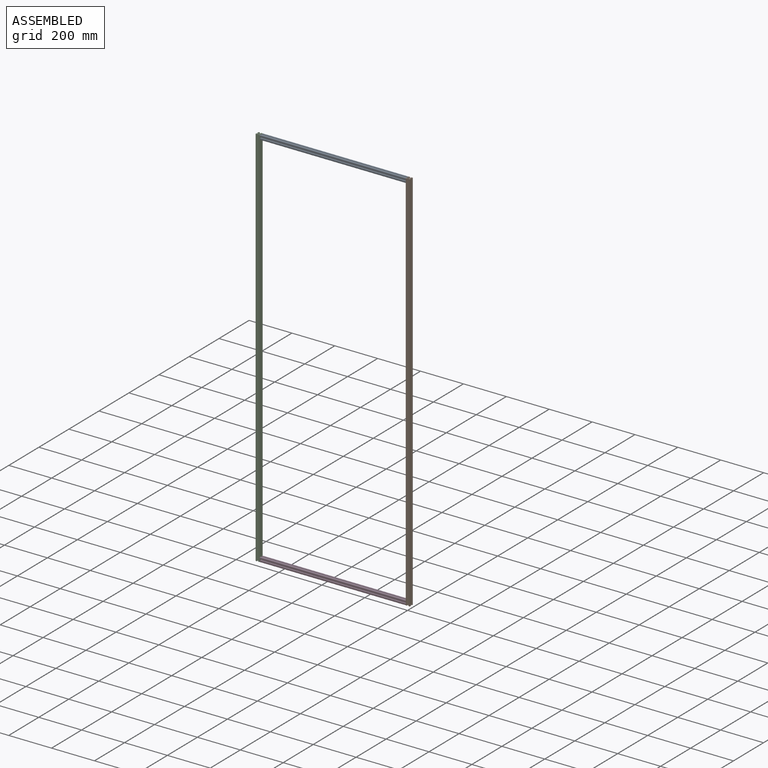
[diagram: assembled view]
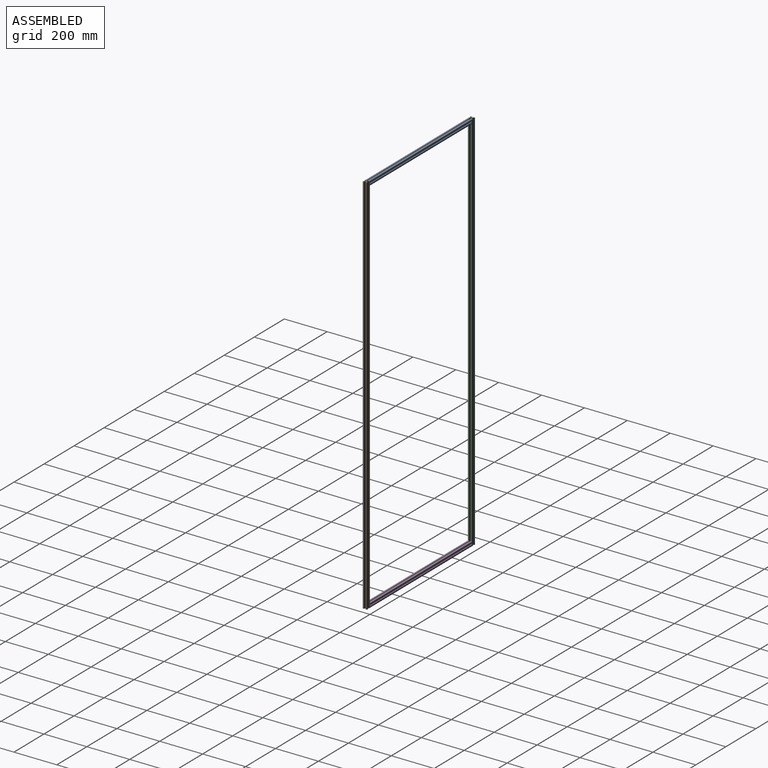
[diagram: assembled view, second angle]
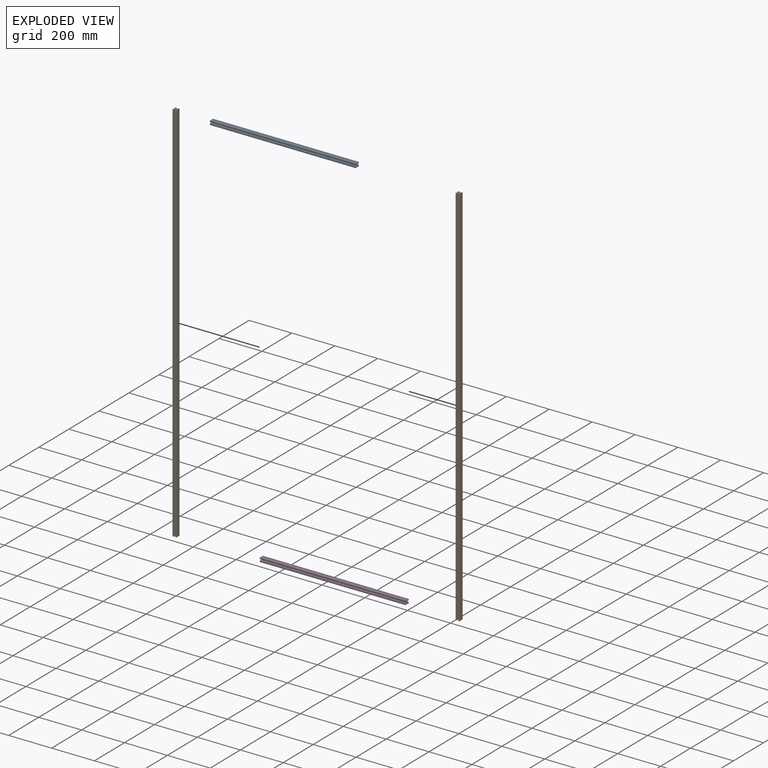
[diagram: exploded view]
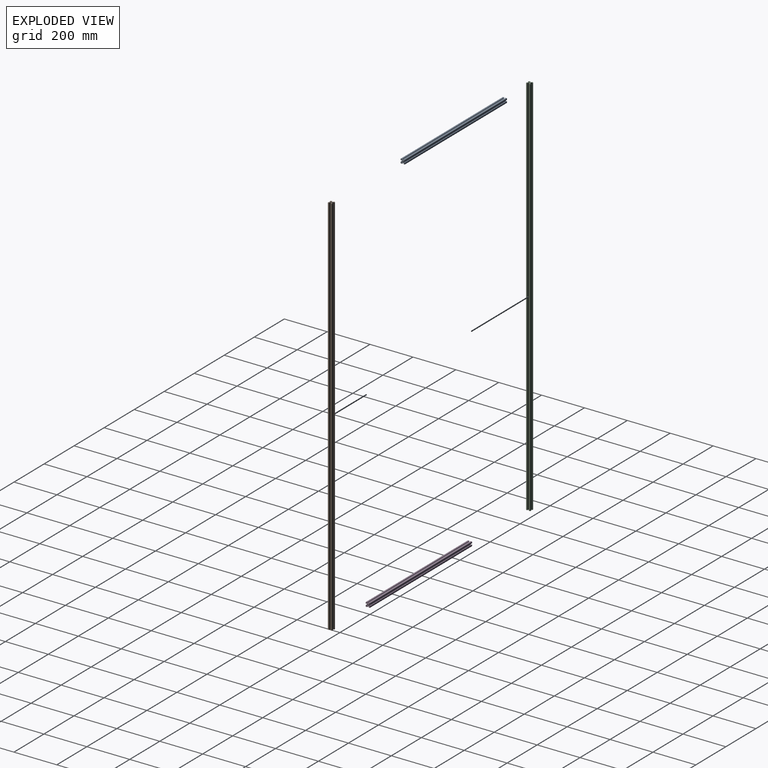
[diagram: exploded view, second angle]
ASSEMBLY  parts=4 mates=4
PART A: 63 faces, bbox 20x20x680 mm
  f0: plane 680x6mm, normal (-1,0,0), area 4080mm2, adj f1,f57,f61,f62
  f1: plane 680x2mm, normal (0,-1,0), area 1360mm2, adj f0,f2,f61,f62
  f2: plane 680x3mm, normal (1,0,0), area 2040mm2, adj f1,f3,f61,f62
  f3: plane 680x0.94mm, normal (0,-1,0), area 638.8mm2, adj f2,f4,f61,f62
  f4: plane 680x3.06mm, normal (-0.71,-0.71,0), area 2943.3mm2, adj f3,f5,f61,f62
  f5: plane 680x2.42mm, normal (-1,0,0), area 1645.4mm2, adj f4,f6,f61,f62
  f6: plane 680x0.52mm, normal (-0.87,-0.5,0), area 408mm2, adj f5,f7,f61,f62
  f7: plane 680x0.52mm, normal (-0.87,0.5,0), area 408mm2, adj f6,f8,f61,f62
  f8: plane 680x2.42mm, normal (-1,0,0), area 1645.4mm2, adj f7,f9,f61,f62
  f9: plane 680x3.06mm, normal (-0.71,0.71,0), area 2943.3mm2, adj f8,f10,f61,f62
  f10: plane 680x0.94mm, normal (0,1,0), area 638.8mm2, adj f9,f11,f61,f62
  f11: plane 680x3mm, normal (1,0,0), area 2040mm2, adj f10,f12,f61,f62
  f12: plane 680x2mm, normal (0,1,0), area 1360mm2, adj f11,f13,f61,f62
  f13: plane 680x6mm, normal (-1,0,0), area 4080mm2, adj f12,f58,f61,f62
  f14: plane 680x6mm, normal (0,-1,0), area 4080mm2, adj f15,f58,f61,f62
  f15: plane 680x2mm, normal (1,0,0), area 1360mm2, adj f14,f16,f61,f62
  f16: plane 680x3mm, normal (0,1,0), area 2040mm2, adj f15,f17,f61,f62
  f17: plane 680x0.94mm, normal (1,0,0), area 638.8mm2, adj f16,f18,f61,f62
  f18: plane 680x3.06mm, normal (0.71,-0.71,0), area 2943.3mm2, adj f17,f19,f61,f62
  f19: plane 680x2.42mm, normal (0,-1,0), area 1645.4mm2, adj f18,f20,f61,f62
  f20: plane 680x0.52mm, normal (0.5,-0.87,0), area 408mm2, adj f19,f21,f61,f62
  f21: plane 680x0.52mm, normal (-0.5,-0.87,0), area 408mm2, adj f20,f22,f61,f62
  f22: plane 680x2.42mm, normal (0,-1,0), area 1645.4mm2, adj f21,f23,f61,f62
  f23: plane 680x3.06mm, normal (-0.71,-0.71,0), area 2943.3mm2, adj f22,f24,f61,f62
  f24: plane 680x0.94mm, normal (-1,0,0), area 638.8mm2, adj f23,f25,f61,f62
  f25: plane 680x3mm, normal (0,1,0), area 2040mm2, adj f24,f26,f61,f62
  f26: plane 680x2mm, normal (-1,0,0), area 1360mm2, adj f25,f27,f61,f62
  f27: plane 680x6mm, normal (0,-1,0), area 4080mm2, adj f26,f59,f61,f62
  f28: plane 680x6mm, normal (1,0,0), area 4080mm2, adj f29,f59,f61,f62
  f29: plane 680x2mm, normal (0,1,0), area 1360mm2, adj f28,f30,f61,f62
  f30: plane 680x3mm, normal (-1,0,0), area 2040mm2, adj f29,f31,f61,f62
  f31: plane 680x0.94mm, normal (0,1,0), area 638.8mm2, adj f30,f32,f61,f62
  f32: plane 680x3.06mm, normal (0.71,0.71,0), area 2943.3mm2, adj f31,f33,f61,f62
  f33: plane 680x2.42mm, normal (1,0,0), area 1645.4mm2, adj f32,f34,f61,f62
  f34: plane 680x0.52mm, normal (0.87,0.5,0), area 408mm2, adj f33,f35,f61,f62
  f35: plane 680x0.52mm, normal (0.87,-0.5,0), area 408mm2, adj f34,f36,f61,f62
  f36: plane 680x2.42mm, normal (1,0,0), area 1645.4mm2, adj f35,f37,f61,f62
  f37: plane 680x3.06mm, normal (0.71,-0.71,0), area 2943.3mm2, adj f36,f38,f61,f62
  f38: plane 680x0.94mm, normal (0,-1,0), area 638.8mm2, adj f37,f39,f61,f62
  f39: plane 680x3mm, normal (-1,0,0), area 2040mm2, adj f38,f40,f61,f62
  f40: plane 680x2mm, normal (0,-1,0), area 1360mm2, adj f39,f41,f61,f62
  f41: plane 680x6mm, normal (1,0,0), area 4080mm2, adj f40,f60,f61,f62
  f42: plane 680x6mm, normal (0,1,0), area 4080mm2, adj f43,f60,f61,f62
  f43: plane 680x2mm, normal (-1,0,0), area 1360mm2, adj f42,f44,f61,f62
  f44: plane 680x3mm, normal (0,-1,0), area 2040mm2, adj f43,f45,f61,f62
  f45: plane 680x0.94mm, normal (-1,0,0), area 638.8mm2, adj f44,f46,f61,f62
  f46: plane 680x3.06mm, normal (-0.71,0.71,0), area 2943.3mm2, adj f45,f47,f61,f62
  f47: plane 680x2.42mm, normal (0,1,0), area 1645.4mm2, adj f46,f48,f61,f62
  f48: plane 680x0.52mm, normal (-0.5,0.87,0), area 408mm2, adj f47,f49,f61,f62
  f49: plane 680x0.52mm, normal (0.5,0.87,0), area 408mm2, adj f48,f50,f61,f62
  f50: plane 680x2.42mm, normal (0,1,0), area 1645.4mm2, adj f49,f51,f61,f62
  f51: plane 680x3.06mm, normal (0.71,0.71,0), area 2943.3mm2, adj f50,f52,f61,f62
  f52: plane 680x0.94mm, normal (1,0,0), area 638.8mm2, adj f51,f53,f61,f62
  f53: plane 680x3mm, normal (0,-1,0), area 2040mm2, adj f52,f54,f61,f62
  f54: plane 680x2mm, normal (1,0,0), area 1360mm2, adj f53,f55,f61,f62
  f55: plane 680x6mm, normal (0,1,0), area 4080mm2, adj f54,f57,f61,f62
  f56: cylinder r=2.1mm len=680mm, axis (0,0,1), area 8972.4mm2, adj f61,f62
  f57: cylinder r=1mm len=680mm, axis (0,0,1), area 1068.1mm2, adj f0,f55,f61,f62
  f58: cylinder r=1mm len=680mm, axis (0,0,1), area 1068.1mm2, adj f13,f14,f61,f62
  f59: cylinder r=1mm len=680mm, axis (0,0,1), area 1068.1mm2, adj f27,f28,f61,f62
  f60: cylinder r=1mm len=680mm, axis (0,0,1), area 1068.1mm2, adj f41,f42,f61,f62
  f61: plane 20x20mm, normal (0,0,-1), area 182.1mm2, adj f0,f1,f2,f3,f4,f5,f6,f7
  f62: plane 20x20mm, normal (0,0,1), area 182.1mm2, adj f0,f1,f2,f3,f4,f5,f6,f7
PART B: 63 faces, bbox 20x20x1800 mm
  f0: plane 1800x6mm, normal (-1,0,0), area 10800mm2, adj f1,f2,f61,f62
  f1: plane 1800x2mm, normal (0,-1,0), area 3600mm2, adj f0,f3,f61,f62
  f2: cylinder r=1mm len=1800mm, axis (0,0,1), area 2827.4mm2, adj f0,f59,f61,f62
  f3: plane 1800x3mm, normal (1,0,0), area 5400mm2, adj f1,f4,f61,f62
  f4: plane 1800x0.94mm, normal (0,-1,0), area 1690.8mm2, adj f3,f5,f61,f62
  f5: plane 1800x3.06mm, normal (-0.71,-0.71,0), area 7791.2mm2, adj f4,f6,f61,f62
  f6: plane 1800x2.42mm, normal (-1,0,0), area 4355.5mm2, adj f5,f7,f61,f62
  f7: plane 1800x0.52mm, normal (-0.87,-0.5,0), area 1080mm2, adj f6,f8,f61,f62
  f8: plane 1800x0.52mm, normal (-0.87,0.5,0), area 1080mm2, adj f7,f9,f61,f62
  f9: plane 1800x2.42mm, normal (-1,0,0), area 4355.5mm2, adj f8,f10,f61,f62
  f10: plane 1800x3.06mm, normal (-0.71,0.71,0), area 7791.2mm2, adj f9,f11,f61,f62
  f11: plane 1800x0.94mm, normal (0,1,0), area 1690.8mm2, adj f10,f12,f61,f62
  f12: plane 1800x3mm, normal (1,0,0), area 5400mm2, adj f11,f13,f61,f62
  f13: plane 1800x2mm, normal (0,1,0), area 3600mm2, adj f12,f14,f61,f62
  f14: plane 1800x6mm, normal (-1,0,0), area 10800mm2, adj f13,f15,f61,f62
  f15: cylinder r=1mm len=1800mm, axis (0,0,1), area 2827.4mm2, adj f14,f16,f61,f62
  f16: plane 1800x6mm, normal (0,-1,0), area 10800mm2, adj f15,f17,f61,f62
  f17: plane 1800x2mm, normal (1,0,0), area 3600mm2, adj f16,f18,f61,f62
  f18: plane 1800x3mm, normal (0,1,0), area 5400mm2, adj f17,f19,f61,f62
  f19: plane 1800x0.94mm, normal (1,0,0), area 1690.8mm2, adj f18,f20,f61,f62
  f20: plane 1800x3.06mm, normal (0.71,-0.71,0), area 7791.2mm2, adj f19,f21,f61,f62
  f21: plane 1800x2.42mm, normal (0,-1,0), area 4355.5mm2, adj f20,f22,f61,f62
  f22: plane 1800x0.52mm, normal (0.5,-0.87,0), area 1080mm2, adj f21,f23,f61,f62
  f23: plane 1800x0.52mm, normal (-0.5,-0.87,0), area 1080mm2, adj f22,f24,f61,f62
  f24: plane 1800x2.42mm, normal (0,-1,0), area 4355.5mm2, adj f23,f25,f61,f62
  f25: plane 1800x3.06mm, normal (-0.71,-0.71,0), area 7791.2mm2, adj f24,f26,f61,f62
  f26: plane 1800x0.94mm, normal (-1,0,0), area 1690.8mm2, adj f25,f27,f61,f62
  f27: plane 1800x3mm, normal (0,1,0), area 5400mm2, adj f26,f28,f61,f62
  f28: plane 1800x2mm, normal (-1,0,0), area 3600mm2, adj f27,f29,f61,f62
  f29: plane 1800x6mm, normal (0,-1,0), area 10800mm2, adj f28,f30,f61,f62
  f30: cylinder r=1mm len=1800mm, axis (0,0,1), area 2827.4mm2, adj f29,f31,f61,f62
  f31: plane 1800x6mm, normal (1,0,0), area 10800mm2, adj f30,f32,f61,f62
  f32: plane 1800x2mm, normal (0,1,0), area 3600mm2, adj f31,f33,f61,f62
  f33: plane 1800x3mm, normal (-1,0,0), area 5400mm2, adj f32,f34,f61,f62
  f34: plane 1800x0.94mm, normal (0,1,0), area 1690.8mm2, adj f33,f35,f61,f62
  f35: plane 1800x3.06mm, normal (0.71,0.71,0), area 7791.2mm2, adj f34,f36,f61,f62
  f36: plane 1800x2.42mm, normal (1,0,0), area 4355.5mm2, adj f35,f37,f61,f62
  f37: plane 1800x0.52mm, normal (0.87,0.5,0), area 1080mm2, adj f36,f38,f61,f62
  f38: plane 1800x0.52mm, normal (0.87,-0.5,0), area 1080mm2, adj f37,f39,f61,f62
  f39: plane 1800x2.42mm, normal (1,0,0), area 4355.5mm2, adj f38,f40,f61,f62
  f40: plane 1800x3.06mm, normal (0.71,-0.71,0), area 7791.2mm2, adj f39,f41,f61,f62
  f41: plane 1800x0.94mm, normal (0,-1,0), area 1690.8mm2, adj f40,f42,f61,f62
  f42: plane 1800x3mm, normal (-1,0,0), area 5400mm2, adj f41,f43,f61,f62
  f43: plane 1800x2mm, normal (0,-1,0), area 3600mm2, adj f42,f44,f61,f62
  f44: plane 1800x6mm, normal (1,0,0), area 10800mm2, adj f43,f45,f61,f62
  f45: cylinder r=1mm len=1800mm, axis (0,0,1), area 2827.4mm2, adj f44,f46,f61,f62
  f46: plane 1800x6mm, normal (0,1,0), area 10800mm2, adj f45,f47,f61,f62
  f47: plane 1800x2mm, normal (-1,0,0), area 3600mm2, adj f46,f48,f61,f62
  f48: plane 1800x3mm, normal (0,-1,0), area 5400mm2, adj f47,f49,f61,f62
  f49: plane 1800x0.94mm, normal (-1,0,0), area 1690.8mm2, adj f48,f50,f61,f62
  f50: plane 1800x3.06mm, normal (-0.71,0.71,0), area 7791.2mm2, adj f49,f51,f61,f62
  f51: plane 1800x2.42mm, normal (0,1,0), area 4355.5mm2, adj f50,f52,f61,f62
  f52: plane 1800x0.52mm, normal (-0.5,0.87,0), area 1080mm2, adj f51,f53,f61,f62
  f53: plane 1800x0.52mm, normal (0.5,0.87,0), area 1080mm2, adj f52,f54,f61,f62
  f54: plane 1800x2.42mm, normal (0,1,0), area 4355.5mm2, adj f53,f55,f61,f62
  f55: plane 1800x3.06mm, normal (0.71,0.71,0), area 7791.2mm2, adj f54,f56,f61,f62
  f56: plane 1800x0.94mm, normal (1,0,0), area 1690.8mm2, adj f55,f57,f61,f62
  f57: plane 1800x3mm, normal (0,-1,0), area 5400mm2, adj f56,f58,f61,f62
  f58: plane 1800x2mm, normal (1,0,0), area 3600mm2, adj f57,f59,f61,f62
  f59: plane 1800x6mm, normal (0,1,0), area 10800mm2, adj f2,f58,f61,f62
  f60: cylinder r=2.1mm len=1800mm, axis (0,0,1), area 23750.4mm2, adj f61,f62
  f61: plane 20x20mm, normal (0,0,-1), area 182.1mm2, adj f0,f1,f2,f3,f4,f5,f6,f7
  f62: plane 20x20mm, normal (0,0,1), area 182.1mm2, adj f0,f1,f2,f3,f4,f5,f6,f7
PART C: same geometry as B
PART D: same geometry as A
PLACE A rot(axis=(0,1,0),90deg) t=(-677,-7.51,1798.28)mm
PLACE B t=(13,-7.51,8.28)mm
PLACE C t=(-687,-7.51,8.28)mm
PLACE D rot(axis=(0,1,0),90deg) t=(-677,-7.51,18.28)mm
MATE fastened A.f62 <-> B.f0  axis (1,0,0) through (3,-4.51,1808.28)mm
MATE fastened D.f61 <-> C.f44  axis (-1,0,0) through (-677,-4.51,8.28)mm
MATE fastened D.f62 <-> B.f0  axis (1,0,0) through (3,-4.51,8.28)mm
MATE fastened A.f61 <-> C.f44  axis (-1,0,0) through (-677,-4.51,1808.28)mm
